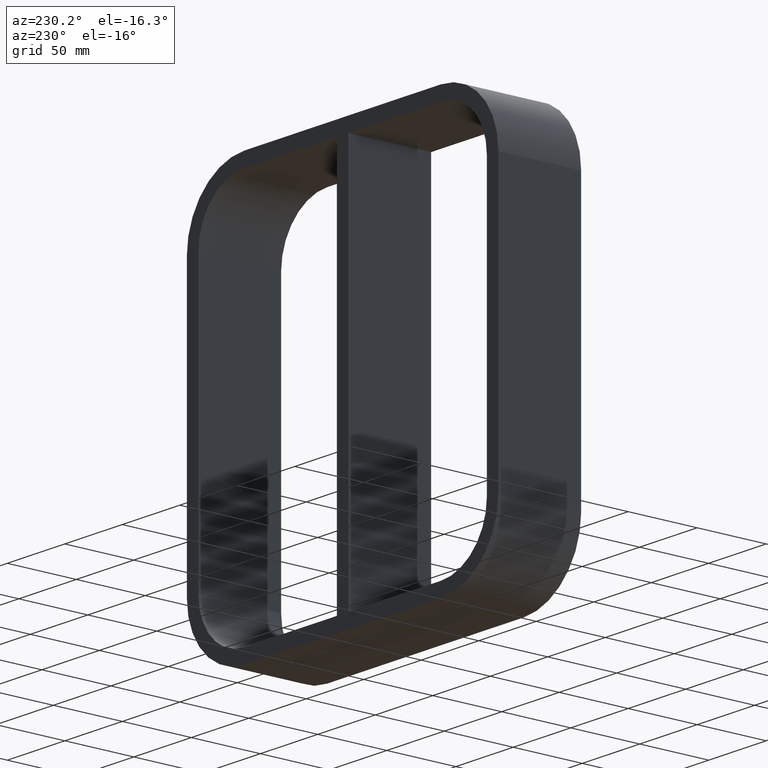
[diagram: clean part render]
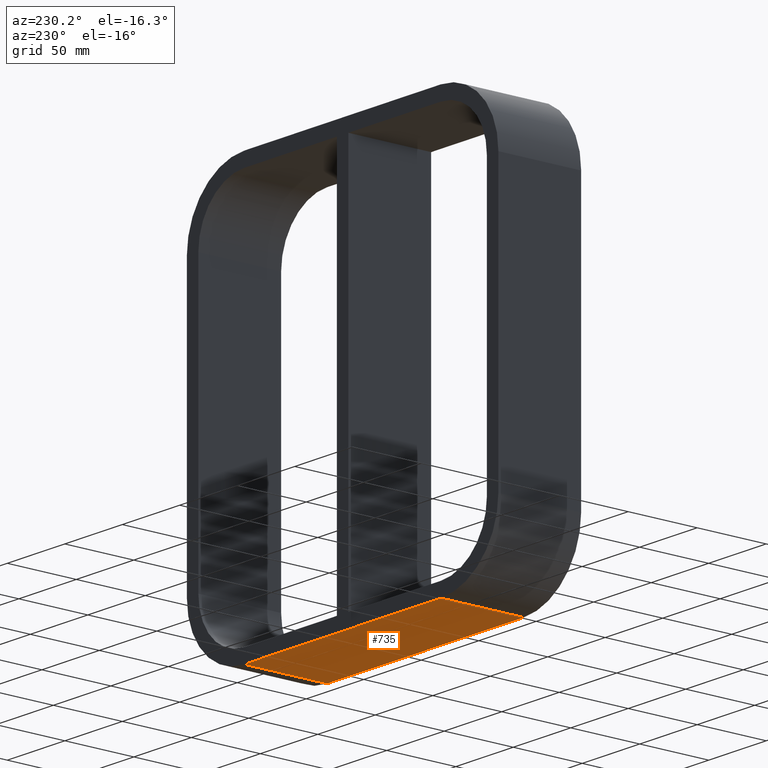
[diagram: same view with one face highlighted and labeled with its STEP entity id]
A machine part, auxiliary view. The second image highlights one B-rep face of the part: STEP entity #735.
In plain terms, the highlighted planar face has unit normal (0, 0, -1).
Its self-contained STEP definition (entity closure, byte-faithful):
#277=CARTESIAN_POINT('',(85.500000000000028,57.0,-149.0));
#278=VERTEX_POINT('',#277);
#296=CARTESIAN_POINT('',(85.500000000000028,-3.0,-149.0));
#297=VERTEX_POINT('',#296);
#305=CARTESIAN_POINT('',(85.500000000000028,-3.0,-149.0));
#306=DIRECTION('',(0.0,1.0,0.0));
#307=VECTOR('',#306,60.0);
#308=LINE('',#305,#307);
#309=EDGE_CURVE('',#297,#278,#308,.T.);
#362=CARTESIAN_POINT('',(-85.499999999999986,-3.0,-149.0));
#363=VERTEX_POINT('',#362);
#371=CARTESIAN_POINT('',(-85.499999999999972,-3.0,-149.0));
#372=DIRECTION('',(1.0,0.0,0.0));
#373=VECTOR('',#372,171.0);
#374=LINE('',#371,#373);
#375=EDGE_CURVE('',#363,#297,#374,.T.);
#494=CARTESIAN_POINT('',(-85.499999999999986,57.0,-149.0));
#495=VERTEX_POINT('',#494);
#503=CARTESIAN_POINT('',(-85.499999999999986,57.0,-149.0));
#504=DIRECTION('',(0.0,-1.0,0.0));
#505=VECTOR('',#504,60.0);
#506=LINE('',#503,#505);
#507=EDGE_CURVE('',#495,#363,#506,.T.);
#719=CARTESIAN_POINT('',(135.50000000000003,0.0,-149.0));
#720=DIRECTION('',(0.0,0.0,-1.0));
#721=DIRECTION('',(-1.0,0.0,0.0));
#722=AXIS2_PLACEMENT_3D('',#719,#720,#721);
#723=PLANE('',#722);
#724=ORIENTED_EDGE('',*,*,#309,.F.);
#725=ORIENTED_EDGE('',*,*,#375,.F.);
#726=ORIENTED_EDGE('',*,*,#507,.F.);
#727=CARTESIAN_POINT('',(85.500000000000028,57.0,-149.0));
#728=DIRECTION('',(-1.0,0.0,0.0));
#729=VECTOR('',#728,171.0);
#730=LINE('',#727,#729);
#731=EDGE_CURVE('',#278,#495,#730,.T.);
#732=ORIENTED_EDGE('',*,*,#731,.F.);
#733=EDGE_LOOP('',(#724,#725,#726,#732));
#734=FACE_OUTER_BOUND('',#733,.T.);
#735=ADVANCED_FACE('',(#734),#723,.T.);